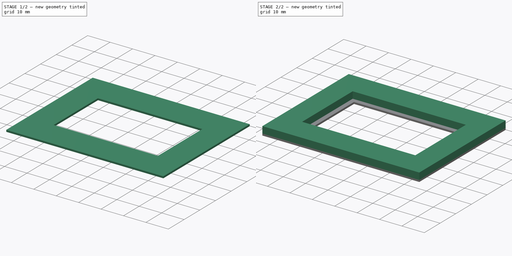
[diagram: build sequence overview — one tinted view per stage of 2, left to right]
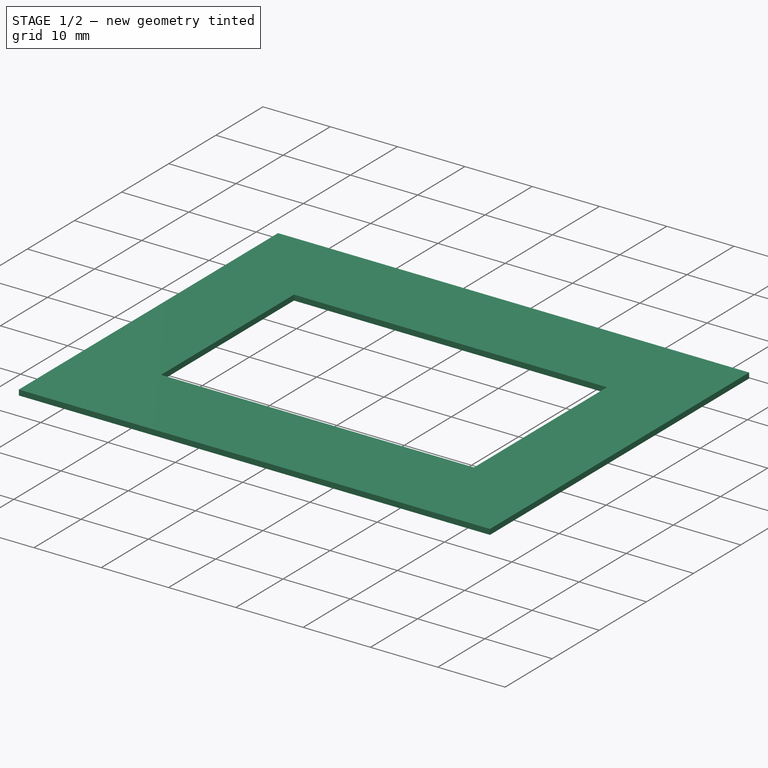
[diagram: stage 1 of 2 — iso view after this stage's code; geometry added in this stage tinted green]
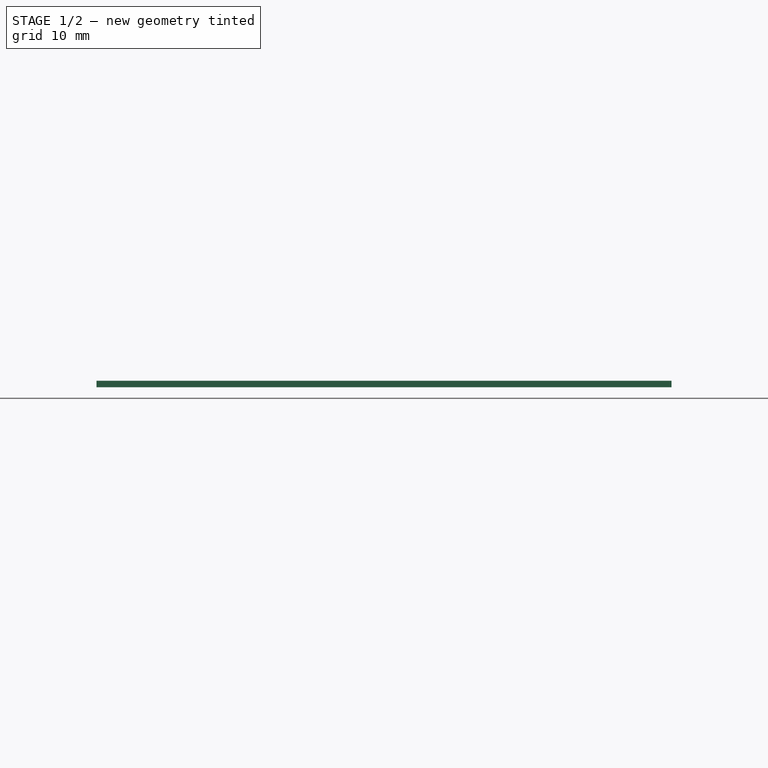
[diagram: stage 1 of 2 — front view after this stage's code; geometry added in this stage tinted green]
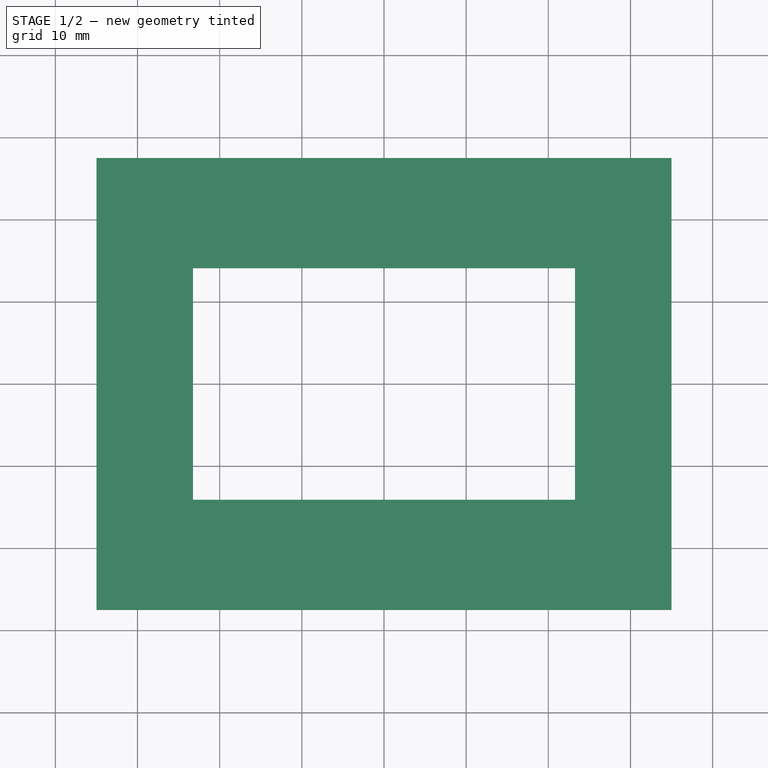
[diagram: stage 1 of 2 — top view after this stage's code; geometry added in this stage tinted green]
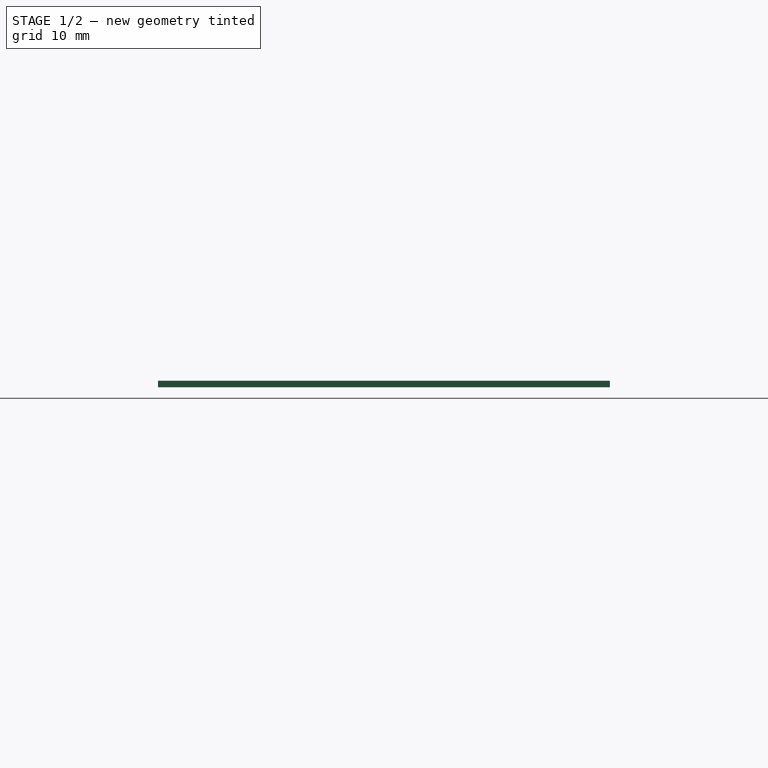
[diagram: stage 1 of 2 — right view after this stage's code; geometry added in this stage tinted green]
FCSTD DOCUMENT  (FreeCAD 0.21R33771 (Git))
Label: IEC320_C14_inlet_template
License: All rights reserved
LicenseURL: http://en.wikipedia.org/wiki/All_rights_reserved
objects: Sketcher::SketchObject×2, PartDesign::Pad×2, Spreadsheet::Sheet×1, PartDesign::Plane×1, PartDesign::Body×1
note: 8 computed .brp shape members not serialized (recipe doc carries the construction recipe); baked Part::Feature solids carry a one-line shape summary decoded from their .brp

FEATURE [Spreadsheet::Sheet] Spreadsheet  label="settings"
  cells = A1='Outer X; B1(outer_X)=70; C1='Inner X; D1(inner_X)=46.5; A2='Outer Y; B2(outer_Y)=55; C2='Inner Y; D2(inner_Y)=28.2; A3='Thickness; B3(clip_thickness)=0.8; C3='Inner spacing; D3(inner_spacing)=2; C4='Inner thickness; D4(inner_thickness)=3; C6='Inner X with space; D6(total_inner_X)==inner_X + inner_spacing * 2; C7='Inner Y with space; D7(total_inner_Y)==inner_Y + inner_spacing * 2
FEATURE [Sketcher::SketchObject] Sketch
  FullyConstrained = true
  MapMode = 5
  Support = -> [XY_Plane]
  expr: Constraints[10] = <<settings>>.outer_Y
  expr: Constraints[20] = <<settings>>.inner_X
  expr: Constraints[21] = <<settings>>.inner_Y
  expr: Constraints[9] = <<settings>>.outer_X
  sketch-geometry (8):
    g0: LineSegment StartX=-35 StartY=27.5 StartZ=0 EndX=35 EndY=27.5 EndZ=0
    g1: LineSegment StartX=35 StartY=27.5 StartZ=0 EndX=35 EndY=-27.5 EndZ=0
    g2: LineSegment StartX=35 StartY=-27.5 StartZ=0 EndX=-35 EndY=-27.5 EndZ=0
    g3: LineSegment StartX=-35 StartY=-27.5 StartZ=0 EndX=-35 EndY=27.5 EndZ=0
    g4: LineSegment StartX=-23.25 StartY=14.1 StartZ=0 EndX=23.25 EndY=14.1 EndZ=0
    g5: LineSegment StartX=23.25 StartY=14.1 StartZ=0 EndX=23.25 EndY=-14.1 EndZ=0
    g6: LineSegment StartX=23.25 StartY=-14.1 StartZ=0 EndX=-23.25 EndY=-14.1 EndZ=0
    g7: LineSegment StartX=-23.25 StartY=-14.1 StartZ=0 EndX=-23.25 EndY=14.1 EndZ=0
  constraints (22):
    c: Coincident(g0,g1)
    c: Coincident(g1,g2)
    c: Coincident(g2,g3)
    c: Coincident(g3,g0)
    c: Horizontal(g0)
    c: Horizontal(g2)
    c: Vertical(g1)
    c: Vertical(g3)
    c: Symmetric(g0,g2,g-1)
    c: Distance(g0) = 70
    c: Distance(g3) = 55
    c: Coincident(g4,g5)
    c: Coincident(g5,g6)
    c: Coincident(g6,g7)
    c: Coincident(g7,g4)
    c: Horizontal(g4)
    c: Horizontal(g6)
    c: Vertical(g5)
    c: Vertical(g7)
    c: Symmetric(g4,g6,g-1)
    c: Distance(g4) = 46.5
    c: Distance(g7) = 28.2
FEATURE [PartDesign::Pad] Pad  label="front_pad"
  Direction = (0,0,1)
  Length = 0.8
  Length2 = 10
  Profile = -> Sketch
  ReferenceAxis = -> Sketch [N_Axis]
  Type = 0
  expr: Length = Spreadsheet.clip_thickness
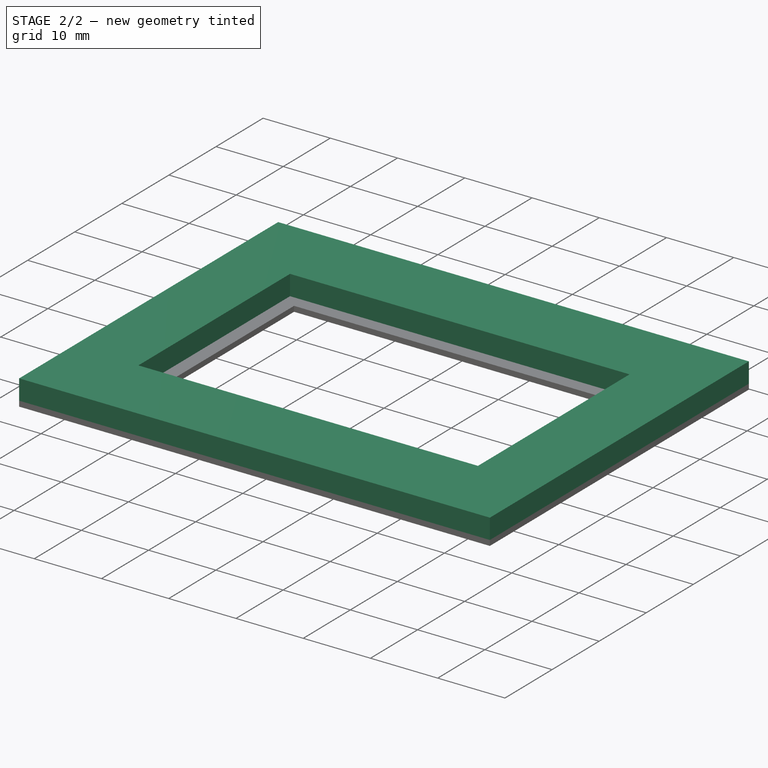
[diagram: stage 2 of 2 — iso view after this stage's code; geometry added in this stage tinted green]
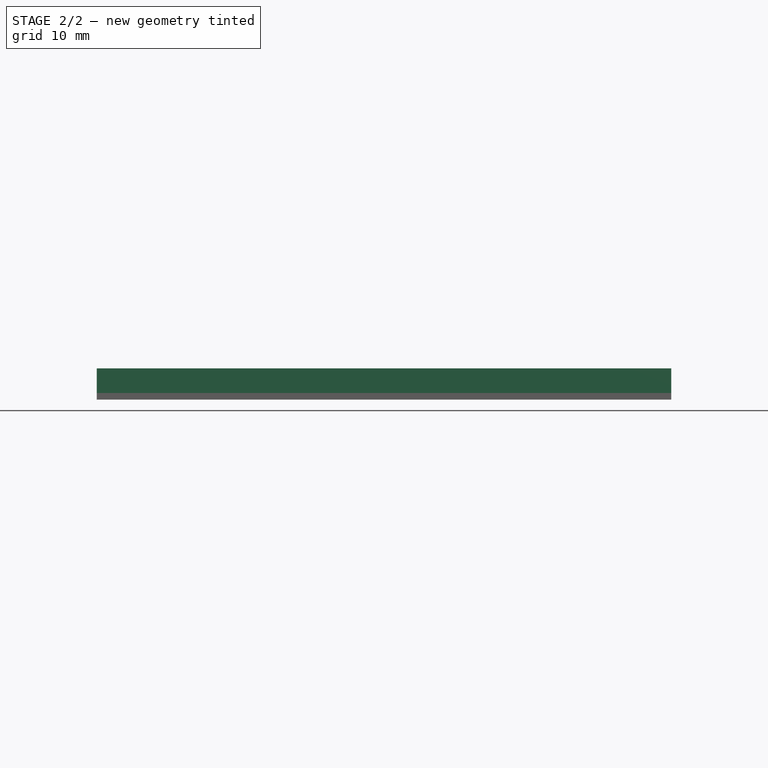
[diagram: stage 2 of 2 — front view after this stage's code; geometry added in this stage tinted green]
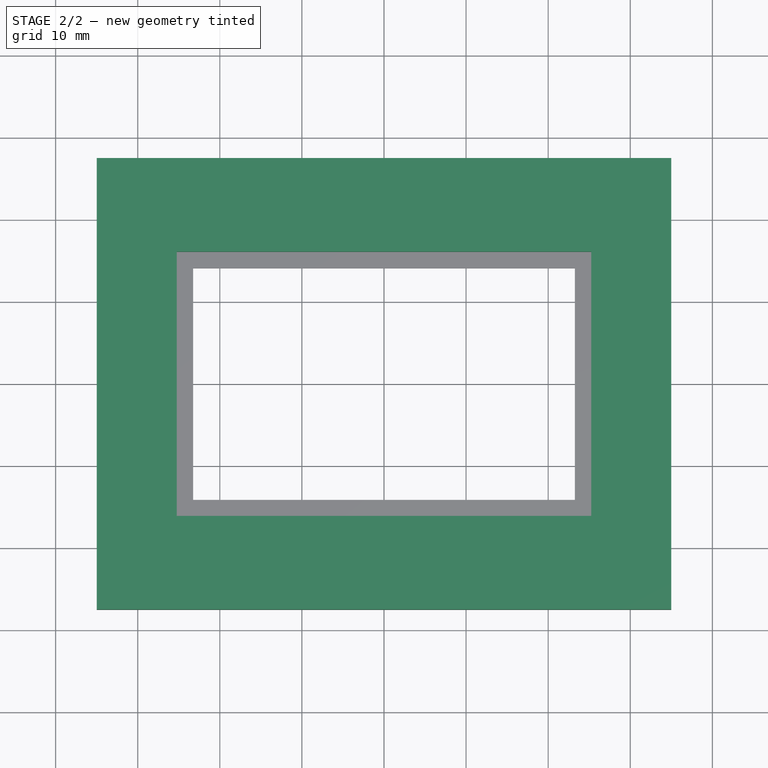
[diagram: stage 2 of 2 — top view after this stage's code; geometry added in this stage tinted green]
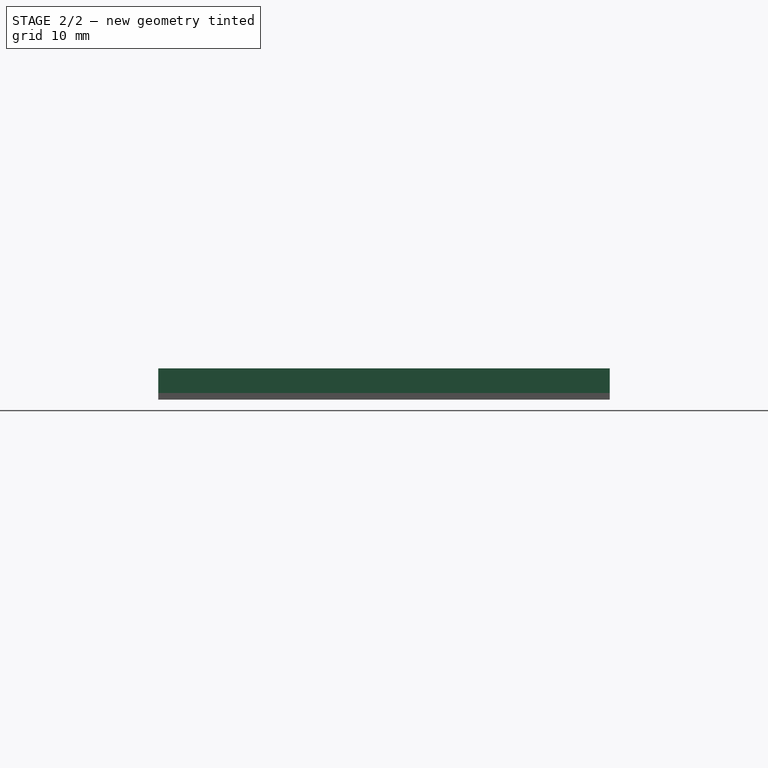
[diagram: stage 2 of 2 — right view after this stage's code; geometry added in this stage tinted green]
FEATURE [PartDesign::Plane] DatumPlane  label="flange_plane"
  AttachmentOffset = pos=(0,0,0.8) rot=(0,0,1;0rad)
  Length = 82.4097
  MapMode = 5
  Placement = pos=(0,0,0.8) rot=(0,0,1;0rad)
  ResizeMode = 0
  Support = -> [XY_Plane]
  Width = 67.4097
  expr: .AttachmentOffset.Base.z = <<settings>>.clip_thickness
FEATURE [Sketcher::SketchObject] Sketch001
  FullyConstrained = true
  MapMode = 5
  Placement = pos=(0,0,0.8) rot=(0,0,1;0rad)
  Support = -> [DatumPlane]
  expr: Constraints[10] = <<settings>>.outer_Y
  expr: Constraints[20] = <<settings>>.total_inner_X
  expr: Constraints[21] = <<settings>>.total_inner_Y
  expr: Constraints[9] = <<settings>>.outer_X
  sketch-geometry (8):
    g0: LineSegment StartX=-35 StartY=27.5 StartZ=0 EndX=35 EndY=27.5 EndZ=0
    g1: LineSegment StartX=35 StartY=27.5 StartZ=0 EndX=35 EndY=-27.5 EndZ=0
    g2: LineSegment StartX=35 StartY=-27.5 StartZ=0 EndX=-35 EndY=-27.5 EndZ=0
    g3: LineSegment StartX=-35 StartY=-27.5 StartZ=0 EndX=-35 EndY=27.5 EndZ=0
    g4: LineSegment StartX=-25.25 StartY=16.1 StartZ=0 EndX=25.25 EndY=16.1 EndZ=0
    g5: LineSegment StartX=25.25 StartY=16.1 StartZ=0 EndX=25.25 EndY=-16.1 EndZ=0
    g6: LineSegment StartX=25.25 StartY=-16.1 StartZ=0 EndX=-25.25 EndY=-16.1 EndZ=0
    g7: LineSegment StartX=-25.25 StartY=-16.1 StartZ=0 EndX=-25.25 EndY=16.1 EndZ=0
  constraints (22):
    c: Coincident(g0,g1)
    c: Coincident(g1,g2)
    c: Coincident(g2,g3)
    c: Coincident(g3,g0)
    c: Horizontal(g0)
    c: Horizontal(g2)
    c: Vertical(g1)
    c: Vertical(g3)
    c: Symmetric(g0,g2,g-1)
    c: Distance(g0) = 70
    c: Distance(g1) = 55
    c: Coincident(g4,g5)
    c: Coincident(g5,g6)
    c: Coincident(g6,g7)
    c: Coincident(g7,g4)
    c: Horizontal(g4)
    c: Horizontal(g6)
    c: Vertical(g5)
    c: Vertical(g7)
    c: Symmetric(g4,g6,g-1)
    c: Distance(g4) = 50.5
    c: Distance(g5) = 32.2
FEATURE [PartDesign::Pad] Pad001  label="back_pad"
  BaseFeature = -> Pad
  Direction = (0,0,1)
  Length = 3
  Length2 = 10
  Profile = -> Sketch001
  ReferenceAxis = -> Sketch001 [N_Axis]
  Type = 0
  expr: Length = <<settings>>.inner_thickness
FEATURE [PartDesign::Body] Body  label="cutout"
  Group = -> [Sketch,Pad,DatumPlane,Sketch001,Pad001]
  Origin = -> Origin
  Tip = -> Pad001
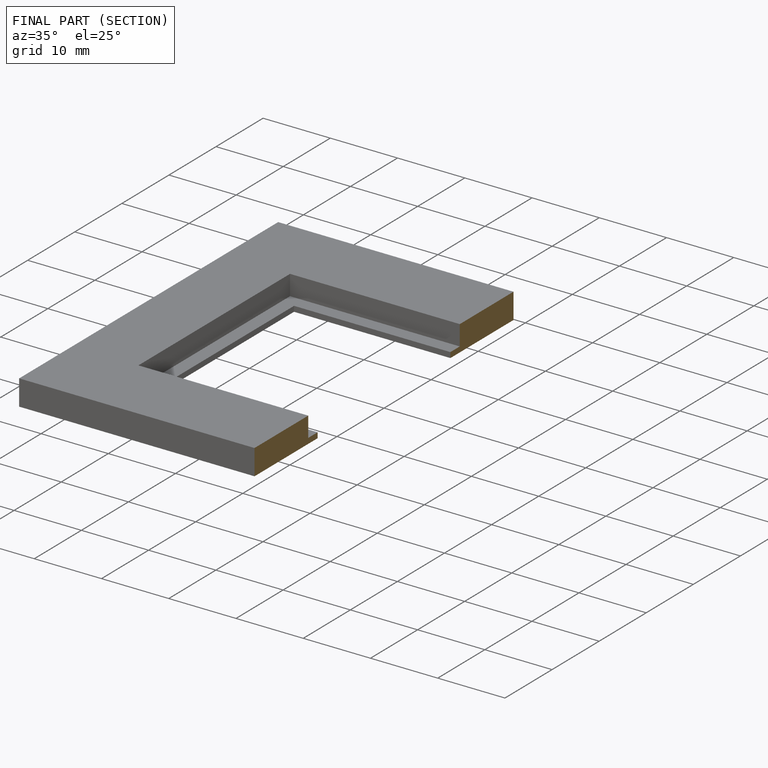
[diagram: finished part — half-section view (interior)]
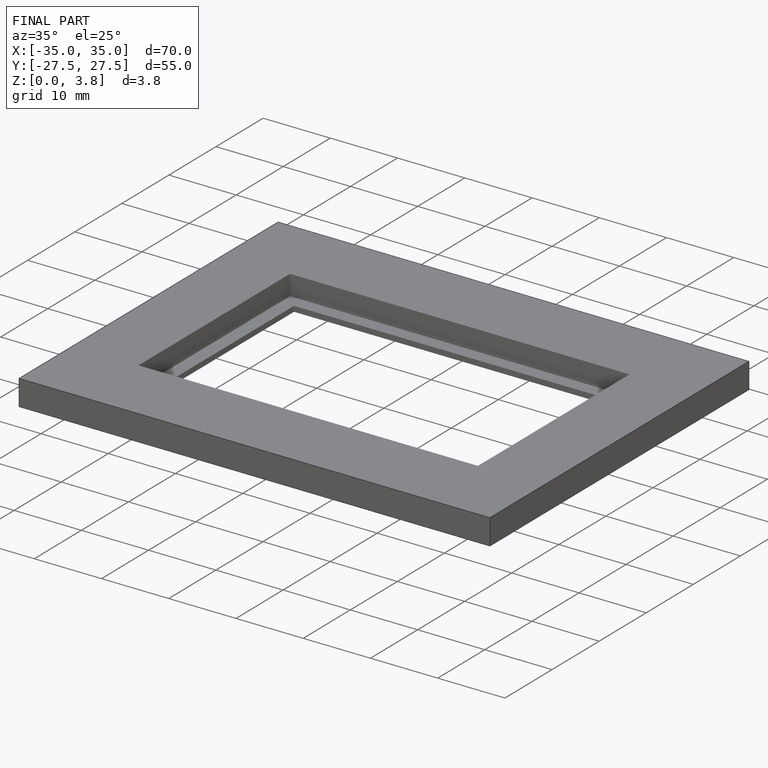
[diagram: finished part — iso view with bounding-box wireframe]
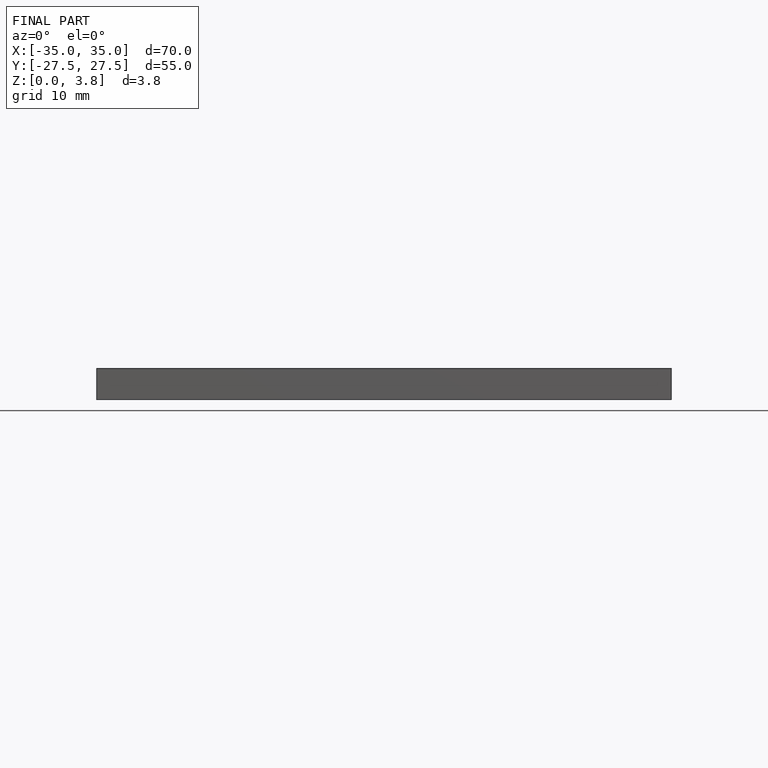
[diagram: finished part — front view with bounding-box wireframe]
